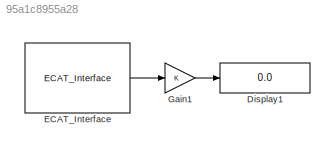
MODEL slx_95a1c8955a28
KIND model
CONFIG AbsTol = auto
CONFIG EnableMultiTasking = on
CONFIG FixedStep = 1/1000
CONFIG MaxStep = auto
CONFIG MinStep = auto
CONFIG PreLoadFcn = Simulink.fileGenControl('set', 'CacheFolder', '<userpath>/ros/indigo/repos/https_/github.com/tue-robotics/sergio_simulink.git/cache', 'CodeGenFolder', '<userpath>/ros/indigo/repos/https_/github.com/tue-robotics/sergio_simulink.git', 'keepPreviousPath', true, 'createDir', true);
CONFIG RelTol = 1e-3
CONFIG SampleTimeConstraint = Unconstrained
CONFIG Solver = FixedStepDiscrete
CONFIG SolverName = FixedStepDiscrete
CONFIG StartTime = 0.0
CONFIG StopTime = Inf
BLOCK [Display] Display1
  Decimation = 1
  Ports = [1]
BLOCK [Reference] ECAT_Interface  REF=SOEM_EtherCAT_Lib/ECAT_Interface
  Ports = [0, 1]
  Priority = 0
  SourceBlock = SOEM_EtherCAT_Lib/ECAT_Interface
BLOCK [Gain] Gain1
  OutDataTypeStr = double
  ParamDataTypeStr = Inherit: Inherit via internal rule
  SaturateOnIntegerOverflow = off
LINE ECAT_Interface:1 -> Gain1:1
LINE Gain1:1 -> Display1:1
